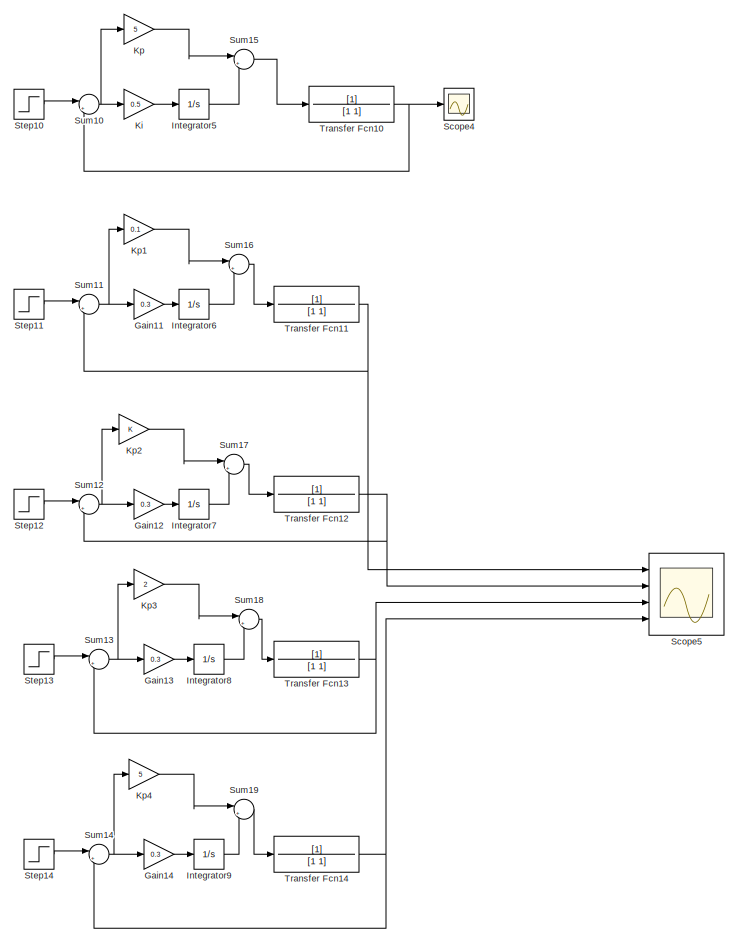
[diagram: root canvas - part 1/3, right side, full height]
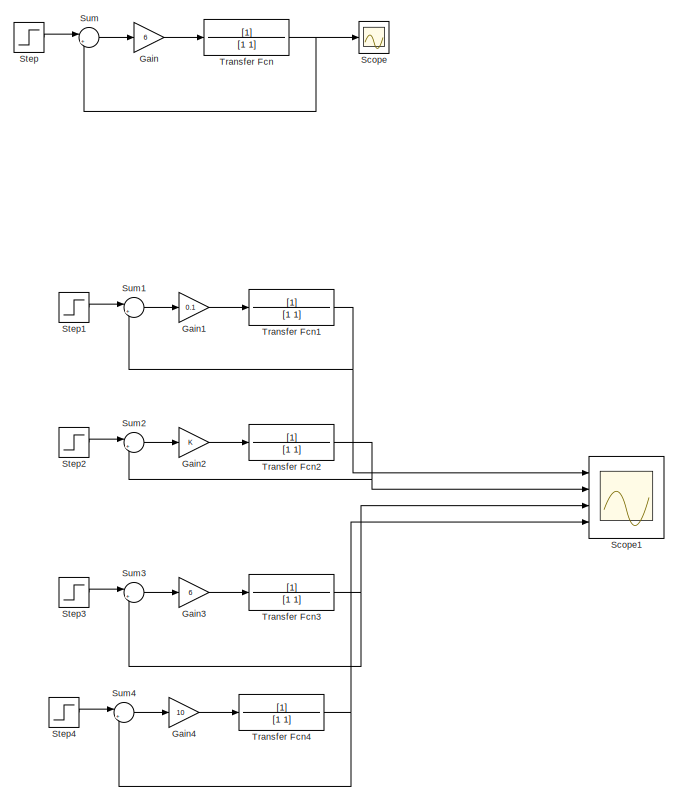
[diagram: root canvas - part 2/3, left side, full height]
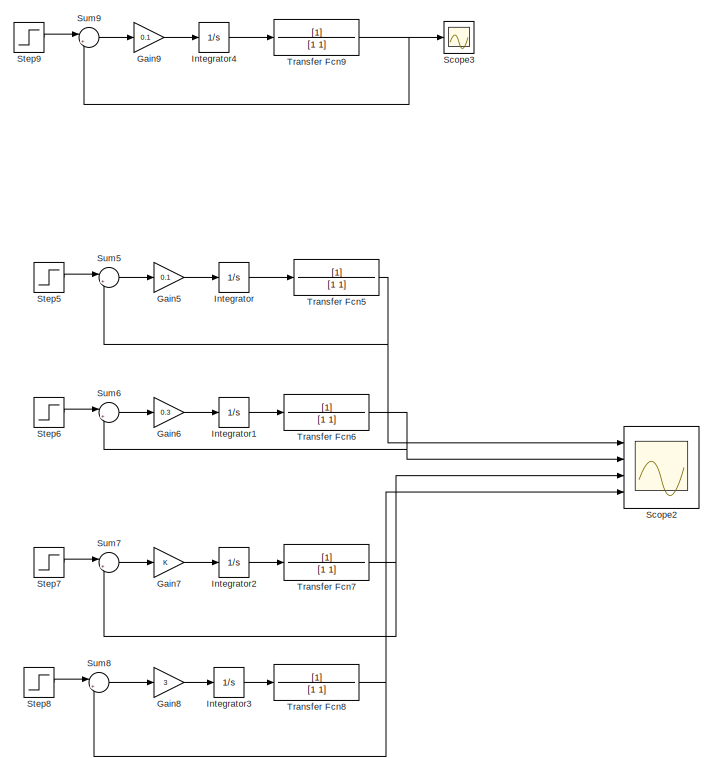
[diagram: root canvas - part 3/3, center side, full height]
MODEL slx_c1b259b7b900
KIND model
CONFIG AbsTol = auto
CONFIG EnableMultiTasking = off
CONFIG FixedStep = auto
CONFIG MaxStep = auto
CONFIG MinStep = auto
CONFIG RelTol = 1e-3
CONFIG SampleTimeConstraint = Unconstrained
CONFIG SolverName = VariableStepAuto
CONFIG StartTime = 0.0
CONFIG StopTime = 50
BLOCK [Gain] Gain
  Gain = 6
BLOCK [Gain] Gain1
  Gain = 0.1
BLOCK [Gain] Gain11
  Gain = 0.3
BLOCK [Gain] Gain12
  Gain = 0.3
BLOCK [Gain] Gain13
  Gain = 0.3
BLOCK [Gain] Gain14
  Gain = 0.3
BLOCK [Gain] Gain2
BLOCK [Gain] Gain3
  Gain = 6
BLOCK [Gain] Gain4
  Gain = 10
BLOCK [Gain] Gain5
  Gain = 0.1
BLOCK [Gain] Gain6
  Gain = 0.3
BLOCK [Gain] Gain7
BLOCK [Gain] Gain8
  Gain = 3
BLOCK [Gain] Gain9
  Gain = 0.1
BLOCK [Integrator] Integrator
  Ports = [1, 1]
BLOCK [Integrator] Integrator1
  Ports = [1, 1]
BLOCK [Integrator] Integrator2
  Ports = [1, 1]
BLOCK [Integrator] Integrator3
  Ports = [1, 1]
BLOCK [Integrator] Integrator4
  Ports = [1, 1]
BLOCK [Integrator] Integrator5
  Ports = [1, 1]
BLOCK [Integrator] Integrator6
  Ports = [1, 1]
BLOCK [Integrator] Integrator7
  Ports = [1, 1]
BLOCK [Integrator] Integrator8
  Ports = [1, 1]
BLOCK [Integrator] Integrator9
  Ports = [1, 1]
BLOCK [Gain] Ki
  Gain = 0.5
BLOCK [Gain] Kp
  Gain = 5
BLOCK [Gain] Kp1
  Gain = 0.1
BLOCK [Gain] Kp2
BLOCK [Gain] Kp3
  Gain = 2
BLOCK [Gain] Kp4
  Gain = 5
BLOCK [Scope] Scope
  Floating = off
  NumInputPorts = 1
  Ports = [1]
  ScopeSpecificationString = Simulink.scopes.TimeScopeBlockCfg('CurrentConfiguration', extmgr.ConfigurationSet(extmgr.Configuration('Core','General UI',true),extmgr.Configuration('Core','Source UI',true),extmgr.Configuration('Sources','WiredSimulink',true),extmgr.Configuration('Visuals','Time Domain',true,'SerializedDisplays',{struct('MinYLimReal','-0.13665','MaxYLimReal','1.22985','YLabelReal','','MinYLimMag','0.00000','MaxY...<+1332ch>
BLOCK [Scope] Scope1
  Floating = off
  NumInputPorts = 4
  Ports = [4]
  ScopeSpecificationString = Simulink.scopes.TimeScopeBlockCfg('CurrentConfiguration', extmgr.ConfigurationSet(extmgr.Configuration('Core','General UI',true),extmgr.Configuration('Core','Source UI',true),extmgr.Configuration('Sources','WiredSimulink',true,'DataLoggingVariableName','ScopeData1'),extmgr.Configuration('Visuals','Time Domain',true,'SerializedDisplays',{struct('MinYLimReal','-0.15564','MaxYLimReal','1.40072','YLab...<+1420ch>
BLOCK [Scope] Scope2
  Floating = off
  NumInputPorts = 4
  Ports = [4]
  ScopeSpecificationString = Simulink.scopes.TimeScopeBlockCfg('CurrentConfiguration', extmgr.ConfigurationSet(extmgr.Configuration('Core','General UI',true),extmgr.Configuration('Core','Source UI',true),extmgr.Configuration('Sources','WiredSimulink',true,'DataLoggingVariableName','ScopeData2'),extmgr.Configuration('Visuals','Time Domain',true,'SerializedDisplays',{struct('MinYLimReal','-67.49801','MaxYLimReal','61.13807','YL...<+1426ch>
BLOCK [Scope] Scope3
  Floating = off
  NumInputPorts = 1
  Ports = [1]
  ScopeSpecificationString = Simulink.scopes.TimeScopeBlockCfg('CurrentConfiguration', extmgr.ConfigurationSet(extmgr.Configuration('Core','General UI',true),extmgr.Configuration('Core','Source UI',true),extmgr.Configuration('Sources','WiredSimulink',true,'DataLoggingVariableName','ScopeData3'),extmgr.Configuration('Visuals','Time Domain',true,'SerializedDisplays',{struct('MinYLimReal','-0.12473','MaxYLimReal','1.12261','YLab...<+1372ch>
BLOCK [Scope] Scope4
  Floating = off
  NumInputPorts = 1
  Ports = [1]
  ScopeSpecificationString = Simulink.scopes.TimeScopeBlockCfg('CurrentConfiguration', extmgr.ConfigurationSet(extmgr.Configuration('Core','General UI',true),extmgr.Configuration('Core','Source UI',true),extmgr.Configuration('Sources','WiredSimulink',true,'DataLoggingVariableName','ScopeData4'),extmgr.Configuration('Visuals','Time Domain',true,'SerializedDisplays',{struct('MinYLimReal','-0.13485','MaxYLimReal','1.21364','YLab...<+1399ch>
BLOCK [Scope] Scope5
  Floating = off
  NumInputPorts = 4
  Ports = [4]
  ScopeSpecificationString = Simulink.scopes.TimeScopeBlockCfg('CurrentConfiguration', extmgr.ConfigurationSet(extmgr.Configuration('Core','General UI',true),extmgr.Configuration('Core','Source UI',true),extmgr.Configuration('Sources','WiredSimulink',true,'DataLoggingVariableName','ScopeData5'),extmgr.Configuration('Visuals','Time Domain',true,'SerializedDisplays',{struct('MinYLimReal','-0.13214','MaxYLimReal','1.18926','YLab...<+1450ch>
BLOCK [Step] Step
  SampleTime = 0
BLOCK [Step] Step1
  SampleTime = 0
BLOCK [Step] Step10
  SampleTime = 0
BLOCK [Step] Step11
  SampleTime = 0
BLOCK [Step] Step12
  SampleTime = 0
BLOCK [Step] Step13
  SampleTime = 0
BLOCK [Step] Step14
  SampleTime = 0
BLOCK [Step] Step2
  SampleTime = 0
BLOCK [Step] Step3
  SampleTime = 0
BLOCK [Step] Step4
  SampleTime = 0
BLOCK [Step] Step5
  SampleTime = 0
BLOCK [Step] Step6
  SampleTime = 0
BLOCK [Step] Step7
  SampleTime = 0
BLOCK [Step] Step8
  SampleTime = 0
BLOCK [Step] Step9
  SampleTime = 0
BLOCK [Sum] Sum
  Inputs = |+-
  Ports = [2, 1]
BLOCK [Sum] Sum1
  Inputs = |+-
  Ports = [2, 1]
BLOCK [Sum] Sum10
  Inputs = |+-
  Ports = [2, 1]
BLOCK [Sum] Sum11
  Inputs = |+-
  Ports = [2, 1]
BLOCK [Sum] Sum12
  Inputs = |+-
  Ports = [2, 1]
BLOCK [Sum] Sum13
  Inputs = |+-
  Ports = [2, 1]
BLOCK [Sum] Sum14
  Inputs = |+-
  Ports = [2, 1]
BLOCK [Sum] Sum15
  Inputs = |++
  Ports = [2, 1]
BLOCK [Sum] Sum16
  Inputs = |++
  Ports = [2, 1]
BLOCK [Sum] Sum17
  Inputs = |++
  Ports = [2, 1]
BLOCK [Sum] Sum18
  Inputs = |++
  Ports = [2, 1]
BLOCK [Sum] Sum19
  Inputs = |++
  Ports = [2, 1]
BLOCK [Sum] Sum2
  Inputs = |+-
  Ports = [2, 1]
BLOCK [Sum] Sum3
  Inputs = |+-
  Ports = [2, 1]
BLOCK [Sum] Sum4
  Inputs = |+-
  Ports = [2, 1]
BLOCK [Sum] Sum5
  Inputs = |+-
  Ports = [2, 1]
BLOCK [Sum] Sum6
  Inputs = |+-
  Ports = [2, 1]
BLOCK [Sum] Sum7
  Inputs = |+-
  Ports = [2, 1]
BLOCK [Sum] Sum8
  Inputs = |+-
  Ports = [2, 1]
BLOCK [Sum] Sum9
  Inputs = |+-
  Ports = [2, 1]
BLOCK [TransferFcn] Transfer Fcn
BLOCK [TransferFcn] Transfer Fcn1
BLOCK [TransferFcn] Transfer Fcn10
BLOCK [TransferFcn] Transfer Fcn11
BLOCK [TransferFcn] Transfer Fcn12
BLOCK [TransferFcn] Transfer Fcn13
BLOCK [TransferFcn] Transfer Fcn14
BLOCK [TransferFcn] Transfer Fcn2
BLOCK [TransferFcn] Transfer Fcn3
BLOCK [TransferFcn] Transfer Fcn4
BLOCK [TransferFcn] Transfer Fcn5
BLOCK [TransferFcn] Transfer Fcn6
BLOCK [TransferFcn] Transfer Fcn7
BLOCK [TransferFcn] Transfer Fcn8
BLOCK [TransferFcn] Transfer Fcn9
LINE Gain11:1 -> Integrator6:1
LINE Gain12:1 -> Integrator7:1
LINE Gain13:1 -> Integrator8:1
LINE Gain14:1 -> Integrator9:1
LINE Gain1:1 -> Transfer Fcn1:1
LINE Gain2:1 -> Transfer Fcn2:1
LINE Gain3:1 -> Transfer Fcn3:1
LINE Gain4:1 -> Transfer Fcn4:1
LINE Gain5:1 -> Integrator:1
LINE Gain6:1 -> Integrator1:1
LINE Gain7:1 -> Integrator2:1
LINE Gain8:1 -> Integrator3:1
LINE Gain9:1 -> Integrator4:1
LINE Gain:1 -> Transfer Fcn:1
LINE Integrator1:1 -> Transfer Fcn6:1
LINE Integrator2:1 -> Transfer Fcn7:1
LINE Integrator3:1 -> Transfer Fcn8:1
LINE Integrator4:1 -> Transfer Fcn9:1
LINE Integrator5:1 -> Sum15:2
LINE Integrator6:1 -> Sum16:2
LINE Integrator7:1 -> Sum17:2
LINE Integrator8:1 -> Sum18:2
LINE Integrator9:1 -> Sum19:2
LINE Integrator:1 -> Transfer Fcn5:1
LINE Ki:1 -> Integrator5:1
LINE Kp1:1 -> Sum16:1
LINE Kp2:1 -> Sum17:1
LINE Kp3:1 -> Sum18:1
LINE Kp4:1 -> Sum19:1
LINE Kp:1 -> Sum15:1
LINE Step10:1 -> Sum10:1
LINE Step11:1 -> Sum11:1
LINE Step12:1 -> Sum12:1
LINE Step13:1 -> Sum13:1
LINE Step14:1 -> Sum14:1
LINE Step1:1 -> Sum1:1
LINE Step2:1 -> Sum2:1
LINE Step3:1 -> Sum3:1
LINE Step4:1 -> Sum4:1
LINE Step5:1 -> Sum5:1
LINE Step6:1 -> Sum6:1
LINE Step7:1 -> Sum7:1
LINE Step8:1 -> Sum8:1
LINE Step9:1 -> Sum9:1
LINE Step:1 -> Sum:1
NET Sum10:1 -> Ki:1, Kp:1
NET Sum11:1 -> Gain11:1, Kp1:1
NET Sum12:1 -> Gain12:1, Kp2:1
NET Sum13:1 -> Gain13:1, Kp3:1
NET Sum14:1 -> Gain14:1, Kp4:1
LINE Sum15:1 -> Transfer Fcn10:1
LINE Sum16:1 -> Transfer Fcn11:1
LINE Sum17:1 -> Transfer Fcn12:1
LINE Sum18:1 -> Transfer Fcn13:1
LINE Sum19:1 -> Transfer Fcn14:1
LINE Sum1:1 -> Gain1:1
LINE Sum2:1 -> Gain2:1
LINE Sum3:1 -> Gain3:1
LINE Sum4:1 -> Gain4:1
LINE Sum5:1 -> Gain5:1
LINE Sum6:1 -> Gain6:1
LINE Sum7:1 -> Gain7:1
LINE Sum8:1 -> Gain8:1
LINE Sum9:1 -> Gain9:1
LINE Sum:1 -> Gain:1
NET Transfer Fcn10:1 -> Scope4:1, Sum10:2
NET Transfer Fcn11:1 -> Scope5:1, Sum11:2
NET Transfer Fcn12:1 -> Scope5:2, Sum12:2
NET Transfer Fcn13:1 -> Scope5:3, Sum13:2
NET Transfer Fcn14:1 -> Scope5:4, Sum14:2
NET Transfer Fcn1:1 -> Scope1:1, Sum1:2
NET Transfer Fcn2:1 -> Scope1:2, Sum2:2
NET Transfer Fcn3:1 -> Scope1:3, Sum3:2
NET Transfer Fcn4:1 -> Scope1:4, Sum4:2
NET Transfer Fcn5:1 -> Scope2:1, Sum5:2
NET Transfer Fcn6:1 -> Scope2:2, Sum6:2
NET Transfer Fcn7:1 -> Scope2:3, Sum7:2
NET Transfer Fcn8:1 -> Scope2:4, Sum8:2
NET Transfer Fcn9:1 -> Scope3:1, Sum9:2
NET Transfer Fcn:1 -> Scope:1, Sum:2
note: NET lines group one-source signal fan-out (src -> all destinations, sorted); 1:1 wires keep LINE
